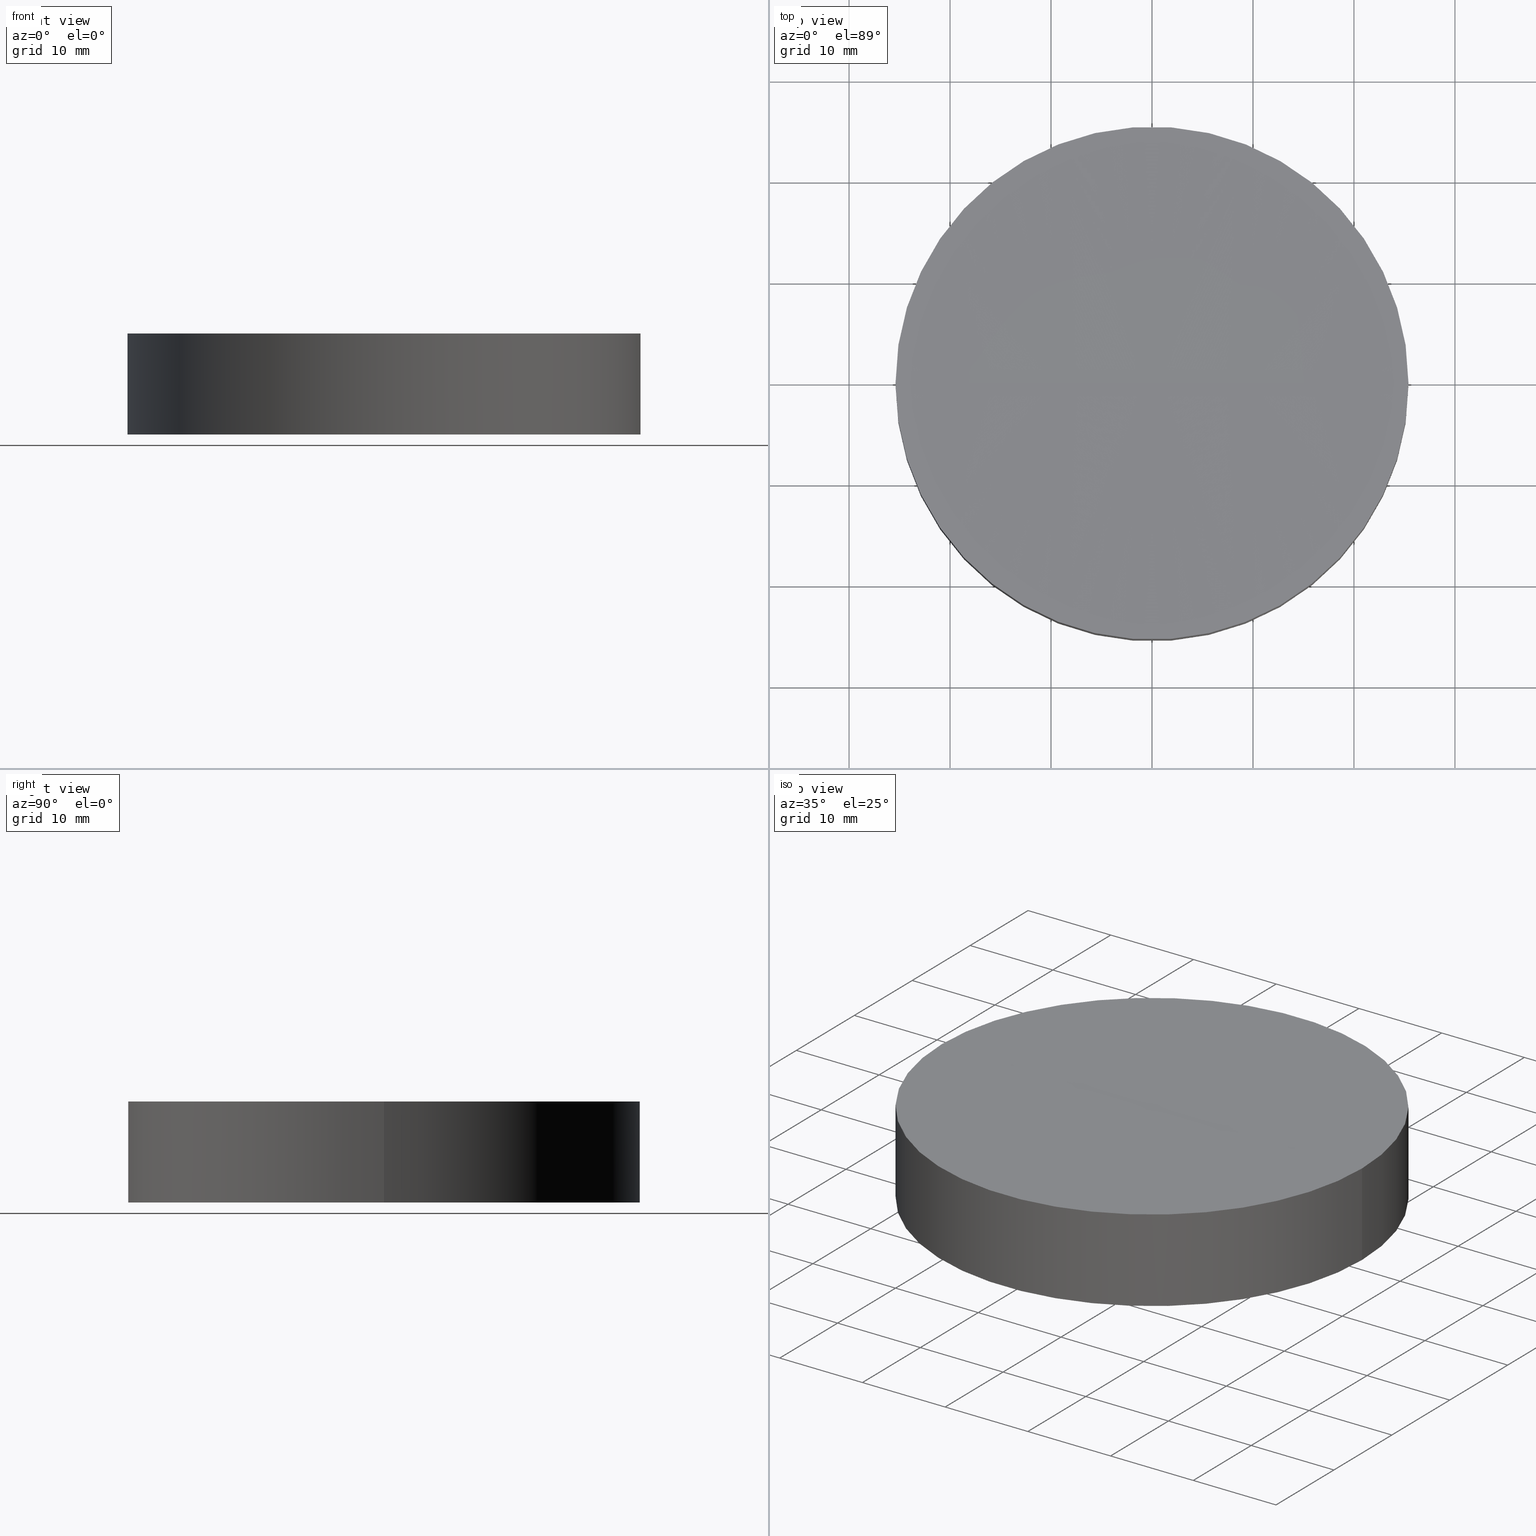
[diagram: canonical four-view strip — front | top / right | iso, engineering-drawing reading convention]
A machine part, canonical four-view strip (front | top / right | iso — engineering-drawing reading convention). The complete STEP part file that produces these views, byte-faithful:
ISO-10303-21;
HEADER;
FILE_DESCRIPTION (( 'STEP AP203' ),
    '1' );
FILE_NAME ('010-1522E_UVFS_PCV_window.STEP',
    '2021-02-25T13:34:09',
    ( '' ),
    ( '' ),
    'SwSTEP 2.0',
    'SolidWorks 2019',
    '' );
FILE_SCHEMA (( 'CONFIG_CONTROL_DESIGN' ));
ENDSEC;

DATA;
#1 = DIRECTION ( 'NONE',  ( 1.000000000000000000, 0.000000000000000000, -0.000000000000000000 ) ) ;
#2 = DIRECTION ( 'NONE',  ( 0.000000000000000000, 0.000000000000000000, 1.000000000000000000 ) ) ;
#3 = APPLICATION_CONTEXT ( 'configuration controlled 3d designs of mechanical parts and assemblies' ) ;
#4 = AXIS2_PLACEMENT_3D ( 'NONE', #186, #65, #1 ) ;
#5 = SPHERICAL_SURFACE ( 'NONE', #22, 2999.999999999999545 ) ;
#6 = CC_DESIGN_PERSON_AND_ORGANIZATION_ASSIGNMENT ( #28, #71, ( #35 ) ) ;
#7 = FACE_OUTER_BOUND ( 'NONE', #29, .T. ) ;
#8 = APPROVAL_STATUS ( 'not_yet_approved' ) ;
#9 = CIRCLE ( 'NONE', #151, 2999.999999999999091 ) ;
#10 = LOCAL_TIME ( 15, 34, 9.000000000000000000, #57 ) ;
#11 = APPROVAL_ROLE ( '' ) ;
#12 = EDGE_CURVE ( 'NONE', #43, #110, #101, .T. ) ;
#13 = PERSON_AND_ORGANIZATION ( #49, #148 ) ;
#14 = LOCAL_TIME ( 15, 34, 9.000000000000000000, #39 ) ;
#15 = ORIENTED_EDGE ( 'NONE', *, *, #83, .T. ) ;
#16 = CARTESIAN_POINT ( 'NONE',  ( -25.39999999999999858, 0.000000000000000000, 0.000000000000000000 ) ) ;
#17 = AXIS2_PLACEMENT_3D ( 'NONE', #167, #113, #31 ) ;
#18 = CARTESIAN_POINT ( 'NONE',  ( -25.39999999995439239, 0.000000000000000000, 9.999999999999786837 ) ) ;
#19 = DIRECTION ( 'NONE',  ( 0.000000000000000000, 1.000000000000000000, -0.000000000000000000 ) ) ;
#20 = DIRECTION ( 'NONE',  ( -1.000000000000000000, 0.000000000000000000, 0.000000000000000000 ) ) ;
#21 = PERSON_AND_ORGANIZATION ( #49, #148 ) ;
#22 = AXIS2_PLACEMENT_3D ( 'NONE', #157, #171, #112 ) ;
#23 =( NAMED_UNIT ( * ) SI_UNIT ( $, .STERADIAN. ) SOLID_ANGLE_UNIT ( ) );
#24 = CARTESIAN_POINT ( 'NONE',  ( 0.000000000000000000, 0.000000000000000000, 0.000000000000000000 ) ) ;
#25 = APPROVAL_ROLE ( '' ) ;
#26 = DIRECTION ( 'NONE',  ( 1.000000000000000000, 0.000000000000000000, 0.000000000000000000 ) ) ;
#27 = APPROVAL_DATE_TIME ( #44, #200 ) ;
#28 = PERSON_AND_ORGANIZATION ( #49, #148 ) ;
#29 = EDGE_LOOP ( 'NONE', ( #179, #61, #58 ) ) ;
#30 = ORIENTED_EDGE ( 'NONE', *, *, #83, .F. ) ;
#31 = DIRECTION ( 'NONE',  ( -1.000000000000000000, 0.000000000000000000, 0.000000000000000000 ) ) ;
#32 = CARTESIAN_POINT ( 'NONE',  ( 0.000000000000000000, 0.000000000000000000, 0.000000000000000000 ) ) ;
#33 = LINE ( 'NONE', #191, #163 ) ;
#34 = FACE_OUTER_BOUND ( 'NONE', #184, .T. ) ;
#35 = PRODUCT_DEFINITION_FORMATION_WITH_SPECIFIED_SOURCE ( 'ANY', '', #137, .NOT_KNOWN. ) ;
#36 =( NAMED_UNIT ( * ) PLANE_ANGLE_UNIT ( ) SI_UNIT ( $, .RADIAN. ) );
#37 = DESIGN_CONTEXT ( 'detailed design', #121, 'design' ) ;
#38 = VECTOR ( 'NONE', #81, 1000.000000000000000 ) ;
#39 = COORDINATED_UNIVERSAL_TIME_OFFSET ( 2, 0, .AHEAD. ) ;
#40 = PERSON_AND_ORGANIZATION_ROLE ( 'design_supplier' ) ;
#41 = CLOSED_SHELL ( 'NONE', ( #174, #170, #166, #153, #123 ) ) ;
#42 = APPROVAL_STATUS ( 'not_yet_approved' ) ;
#43 = VERTEX_POINT ( 'NONE', #89 ) ;
#44 = DATE_AND_TIME ( #126, #142 ) ;
#45 = ORIENTED_EDGE ( 'NONE', *, *, #144, .T. ) ;
#46 = ADVANCED_BREP_SHAPE_REPRESENTATION ( '010-1522E_UVFS_PCV_window', ( #188, #103 ), #160 ) ;
#47 = DIRECTION ( 'NONE',  ( 1.000000000000000000, 0.000000000000000000, 0.000000000000000000 ) ) ;
#48 = DIRECTION ( 'NONE',  ( 0.000000000000000000, 0.000000000000000000, 1.000000000000000000 ) ) ;
#49 = PERSON ( 'UNSPECIFIED', 'UNSPECIFIED', 'UNSPECIFIED', ('UNSPECIFIED'), ('UNSPECIFIED'), ('UNSPECIFIED') ) ;
#50 = AXIS2_PLACEMENT_3D ( 'NONE', #32, #155, #145 ) ;
#51 = DIRECTION ( 'NONE',  ( 0.000000000000000000, -1.000000000000000000, -0.000000000000000000 ) ) ;
#52 = CARTESIAN_POINT ( 'NONE',  ( 0.000000000000000000, 0.000000000000000000, 0.000000000000000000 ) ) ;
#53 = CC_DESIGN_PERSON_AND_ORGANIZATION_ASSIGNMENT ( #54, #116, ( #137 ) ) ;
#54 = PERSON_AND_ORGANIZATION ( #49, #148 ) ;
#55 = PRODUCT_RELATED_PRODUCT_CATEGORY ( 'detail', '', ( #137 ) ) ;
#56 = PERSON_AND_ORGANIZATION_ROLE ( 'creator' ) ;
#57 = COORDINATED_UNIVERSAL_TIME_OFFSET ( 2, 0, .AHEAD. ) ;
#58 = ORIENTED_EDGE ( 'NONE', *, *, #140, .T. ) ;
#59 = COORDINATED_UNIVERSAL_TIME_OFFSET ( 2, 0, .AHEAD. ) ;
#60 = PRODUCT_DEFINITION_SHAPE ( 'NONE', 'NONE',  #92 ) ;
#61 = ORIENTED_EDGE ( 'NONE', *, *, #12, .F. ) ;
#62 = CC_DESIGN_APPROVAL ( #131, ( #35 ) ) ;
#63 = CARTESIAN_POINT ( 'NONE',  ( 3.712308238590367182E-13, 0.000000000000000000, 3009.892471406266850 ) ) ;
#64 = CYLINDRICAL_SURFACE ( 'NONE', #66, 25.39999999999999858 ) ;
#65 = DIRECTION ( 'NONE',  ( 0.000000000000000000, 0.000000000000000000, 1.000000000000000000 ) ) ;
#66 = AXIS2_PLACEMENT_3D ( 'NONE', #159, #190, #20 ) ;
#67 = DIRECTION ( 'NONE',  ( 1.000000000000000000, 0.000000000000000000, 0.000000000000000000 ) ) ;
#68 = FACE_OUTER_BOUND ( 'NONE', #74, .T. ) ;
#69 = CC_DESIGN_PERSON_AND_ORGANIZATION_ASSIGNMENT ( #180, #107, ( #79 ) ) ;
#70 = APPROVAL_PERSON_ORGANIZATION ( #177, #131, #25 ) ;
#71 = PERSON_AND_ORGANIZATION_ROLE ( 'creator' ) ;
#72 = DATE_AND_TIME ( #161, #119 ) ;
#73 = DATE_AND_TIME ( #109, #14 ) ;
#74 = EDGE_LOOP ( 'NONE', ( #183, #45, #196 ) ) ;
#75 = EDGE_CURVE ( 'NONE', #110, #43, #85, .T. ) ;
#76 = APPROVAL_PERSON_ORGANIZATION ( #21, #91, #11 ) ;
#77 = VERTEX_POINT ( 'NONE', #156 ) ;
#78 = CYLINDRICAL_SURFACE ( 'NONE', #17, 25.39999999999999858 ) ;
#79 = SECURITY_CLASSIFICATION ( '', '', #104 ) ;
#80 = LINE ( 'NONE', #100, #38 ) ;
#81 = DIRECTION ( 'NONE',  ( -0.000000000000000000, -0.000000000000000000, -1.000000000000000000 ) ) ;
#82 = CARTESIAN_POINT ( 'NONE',  ( 5.549278437311396424E-13, 0.000000000000000000, 9.892471406267144829 ) ) ;
#83 = EDGE_CURVE ( 'NONE', #43, #77, #80, .T. ) ;
#84 = UNCERTAINTY_MEASURE_WITH_UNIT (LENGTH_MEASURE( 1.000000000000000082E-05 ), #130, 'distance_accuracy_value', 'NONE');
#85 = CIRCLE ( 'NONE', #108, 25.39999999995476543 ) ;
#86 = DIRECTION ( 'NONE',  ( 0.000000000000000000, 0.000000000000000000, 1.000000000000000000 ) ) ;
#87 = PERSON_AND_ORGANIZATION ( #49, #148 ) ;
#88 = APPROVAL_PERSON_ORGANIZATION ( #90, #200, #195 ) ;
#89 = CARTESIAN_POINT ( 'NONE',  ( 25.39999999995513491, 3.110602869831530446E-15, 9.999999999999786837 ) ) ;
#90 = PERSON_AND_ORGANIZATION ( #49, #148 ) ;
#91 = APPROVAL ( #8, 'UNSPECIFIED' ) ;
#92 = PRODUCT_DEFINITION ( 'UNKNOWN', '', #35, #37 ) ;
#93 = ORIENTED_EDGE ( 'NONE', *, *, #75, .T. ) ;
#94 = AXIS2_PLACEMENT_3D ( 'NONE', #52, #2, #67 ) ;
#95 = CARTESIAN_POINT ( 'NONE',  ( 3.712308238590367182E-13, 0.000000000000000000, 3009.892471406266850 ) ) ;
#96 = DIRECTION ( 'NONE',  ( -0.000000000000000000, -0.000000000000000000, -1.000000000000000000 ) ) ;
#97 = DIRECTION ( 'NONE',  ( -0.000000000000000000, -0.000000000000000000, -1.000000000000000000 ) ) ;
#98 = CC_DESIGN_PERSON_AND_ORGANIZATION_ASSIGNMENT ( #13, #56, ( #92 ) ) ;
#99 = FACE_OUTER_BOUND ( 'NONE', #136, .T. ) ;
#100 = CARTESIAN_POINT ( 'NONE',  ( 25.39999999999999858, 3.110602869834276865E-15, 10.00000000000000000 ) ) ;
#101 = CIRCLE ( 'NONE', #168, 25.39999999995476543 ) ;
#102 = MECHANICAL_CONTEXT ( 'NONE', #3, 'mechanical' ) ;
#103 = AXIS2_PLACEMENT_3D ( 'NONE', #24, #86, #118 ) ;
#104 = SECURITY_CLASSIFICATION_LEVEL ( 'unclassified' ) ;
#105 = CC_DESIGN_PERSON_AND_ORGANIZATION_ASSIGNMENT ( #87, #40, ( #35 ) ) ;
#106 = CARTESIAN_POINT ( 'NONE',  ( 3.712308238590367182E-13, 0.000000000000000000, 9.999999999999786837 ) ) ;
#107 = PERSON_AND_ORGANIZATION_ROLE ( 'classification_officer' ) ;
#108 = AXIS2_PLACEMENT_3D ( 'NONE', #143, #97, #169 ) ;
#109 = CALENDAR_DATE ( 2021, 25, 2 ) ;
#110 = VERTEX_POINT ( 'NONE', #18 ) ;
#111 = ORIENTED_EDGE ( 'NONE', *, *, #115, .F. ) ;
#112 = DIRECTION ( 'NONE',  ( 1.000000000000000000, 0.000000000000000000, 0.000000000000000000 ) ) ;
#113 = DIRECTION ( 'NONE',  ( -0.000000000000000000, -0.000000000000000000, -1.000000000000000000 ) ) ;
#114 = DIRECTION ( 'NONE',  ( 1.000000000000000000, 1.224646799147353207E-16, 0.000000000000000000 ) ) ;
#115 = EDGE_CURVE ( 'NONE', #110, #198, #33, .T. ) ;
#116 = PERSON_AND_ORGANIZATION_ROLE ( 'design_owner' ) ;
#117 = CIRCLE ( 'NONE', #138, 2999.999999999999545 ) ;
#118 = DIRECTION ( 'NONE',  ( 1.000000000000000000, 0.000000000000000000, 0.000000000000000000 ) ) ;
#119 = LOCAL_TIME ( 15, 34, 9.000000000000000000, #134 ) ;
#120 = APPLICATION_PROTOCOL_DEFINITION ( 'international standard', 'config_control_design', 1994, #3 ) ;
#121 = APPLICATION_CONTEXT ( 'configuration controlled 3d designs of mechanical parts and assemblies' ) ;
#122 = DATE_AND_TIME ( #124, #10 ) ;
#123 = ADVANCED_FACE ( 'NONE', ( #7 ), #5, .F. ) ;
#124 = CALENDAR_DATE ( 2021, 25, 2 ) ;
#125 = ORIENTED_EDGE ( 'NONE', *, *, #181, .T. ) ;
#126 = CALENDAR_DATE ( 2021, 25, 2 ) ;
#127 = CC_DESIGN_DATE_AND_TIME_ASSIGNMENT ( #164, #150, ( #79 ) ) ;
#128 = CC_DESIGN_APPROVAL ( #91, ( #92 ) ) ;
#129 = PLANE ( 'NONE',  #4 ) ;
#130 =( LENGTH_UNIT ( ) NAMED_UNIT ( * ) SI_UNIT ( .MILLI., .METRE. ) );
#131 = APPROVAL ( #42, 'UNSPECIFIED' ) ;
#132 = CC_DESIGN_SECURITY_CLASSIFICATION ( #79, ( #35 ) ) ;
#133 = COORDINATED_UNIVERSAL_TIME_OFFSET ( 2, 0, .AHEAD. ) ;
#134 = COORDINATED_UNIVERSAL_TIME_OFFSET ( 2, 0, .AHEAD. ) ;
#135 = APPROVAL_STATUS ( 'not_yet_approved' ) ;
#136 = EDGE_LOOP ( 'NONE', ( #141, #199 ) ) ;
#137 = PRODUCT ( '010-1522E_UVFS_PCV_window', '010-1522E_UVFS_PCV_window', '', ( #102 ) ) ;
#138 = AXIS2_PLACEMENT_3D ( 'NONE', #63, #187, #114 ) ;
#139 = SHAPE_DEFINITION_REPRESENTATION ( #60, #46 ) ;
#140 = EDGE_CURVE ( 'NONE', #43, #182, #9, .T. ) ;
#141 = ORIENTED_EDGE ( 'NONE', *, *, #181, .F. ) ;
#142 = LOCAL_TIME ( 15, 34, 9.000000000000000000, #59 ) ;
#143 = CARTESIAN_POINT ( 'NONE',  ( 3.712308238590367182E-13, 0.000000000000000000, 9.999999999999786837 ) ) ;
#144 = EDGE_CURVE ( 'NONE', #110, #182, #117, .T. ) ;
#145 = DIRECTION ( 'NONE',  ( 1.000000000000000000, 0.000000000000000000, 0.000000000000000000 ) ) ;
#146 = SPHERICAL_SURFACE ( 'NONE', #189, 2999.999999999999545 ) ;
#147 = EDGE_CURVE ( 'NONE', #77, #198, #176, .T. ) ;
#148 = ORGANIZATION ( 'UNSPECIFIED', 'UNSPECIFIED', '' ) ;
#149 = DATE_TIME_ROLE ( 'creation_date' ) ;
#150 = DATE_TIME_ROLE ( 'classification_date' ) ;
#151 = AXIS2_PLACEMENT_3D ( 'NONE', #95, #19, #48 ) ;
#152 = ORIENTED_EDGE ( 'NONE', *, *, #147, .T. ) ;
#153 = ADVANCED_FACE ( 'NONE', ( #99 ), #129, .F. ) ;
#154 = ORIENTED_EDGE ( 'NONE', *, *, #12, .T. ) ;
#155 = DIRECTION ( 'NONE',  ( 0.000000000000000000, 0.000000000000000000, 1.000000000000000000 ) ) ;
#156 = CARTESIAN_POINT ( 'NONE',  ( 25.39999999999999858, 3.110602869834276865E-15, 0.000000000000000000 ) ) ;
#157 = CARTESIAN_POINT ( 'NONE',  ( 3.712308238590367182E-13, 0.000000000000000000, 3009.892471406266850 ) ) ;
#158 = FACE_OUTER_BOUND ( 'NONE', #165, .T. ) ;
#159 = CARTESIAN_POINT ( 'NONE',  ( 0.000000000000000000, 0.000000000000000000, 10.00000000000000000 ) ) ;
#160 =( GEOMETRIC_REPRESENTATION_CONTEXT ( 3 ) GLOBAL_UNCERTAINTY_ASSIGNED_CONTEXT ( ( #84 ) ) GLOBAL_UNIT_ASSIGNED_CONTEXT ( ( #130, #36, #23 ) ) REPRESENTATION_CONTEXT ( 'NONE', 'WORKASPACE' ) );
#161 = CALENDAR_DATE ( 2021, 25, 2 ) ;
#162 = DIRECTION ( 'NONE',  ( -0.000000000000000000, -0.000000000000000000, -1.000000000000000000 ) ) ;
#163 = VECTOR ( 'NONE', #96, 1000.000000000000000 ) ;
#164 = DATE_AND_TIME ( #193, #173 ) ;
#165 = EDGE_LOOP ( 'NONE', ( #30, #154, #197, #125 ) ) ;
#166 = ADVANCED_FACE ( 'NONE', ( #158 ), #78, .T. ) ;
#167 = CARTESIAN_POINT ( 'NONE',  ( 0.000000000000000000, 0.000000000000000000, 10.00000000000000000 ) ) ;
#168 = AXIS2_PLACEMENT_3D ( 'NONE', #106, #162, #26 ) ;
#169 = DIRECTION ( 'NONE',  ( 1.000000000000000000, 0.000000000000000000, 0.000000000000000000 ) ) ;
#170 = ADVANCED_FACE ( 'NONE', ( #34 ), #64, .T. ) ;
#171 = DIRECTION ( 'NONE',  ( 0.000000000000000000, -1.000000000000000000, -0.000000000000000000 ) ) ;
#172 = APPLICATION_PROTOCOL_DEFINITION ( 'international standard', 'config_control_design', 1994, #121 ) ;
#173 = LOCAL_TIME ( 15, 34, 9.000000000000000000, #133 ) ;
#174 = ADVANCED_FACE ( 'NONE', ( #68 ), #146, .F. ) ;
#175 = CC_DESIGN_DATE_AND_TIME_ASSIGNMENT ( #122, #149, ( #92 ) ) ;
#176 = CIRCLE ( 'NONE', #94, 25.39999999999999858 ) ;
#177 = PERSON_AND_ORGANIZATION ( #49, #148 ) ;
#178 = APPROVAL_DATE_TIME ( #73, #131 ) ;
#179 = ORIENTED_EDGE ( 'NONE', *, *, #144, .F. ) ;
#180 = PERSON_AND_ORGANIZATION ( #49, #148 ) ;
#181 = EDGE_CURVE ( 'NONE', #198, #77, #192, .T. ) ;
#182 = VERTEX_POINT ( 'NONE', #82 ) ;
#183 = ORIENTED_EDGE ( 'NONE', *, *, #75, .F. ) ;
#184 = EDGE_LOOP ( 'NONE', ( #93, #15, #152, #111 ) ) ;
#185 = CARTESIAN_POINT ( 'NONE',  ( 3.712308238590367182E-13, 0.000000000000000000, 3009.892471406266850 ) ) ;
#186 = CARTESIAN_POINT ( 'NONE',  ( 0.000000000000000000, 0.000000000000000000, 0.000000000000000000 ) ) ;
#187 = DIRECTION ( 'NONE',  ( 1.224646799147353207E-16, -1.000000000000000000, 0.000000000000000000 ) ) ;
#188 = MANIFOLD_SOLID_BREP ( 'Cut-Revolve1', #41 ) ;
#189 = AXIS2_PLACEMENT_3D ( 'NONE', #185, #51, #47 ) ;
#190 = DIRECTION ( 'NONE',  ( -0.000000000000000000, -0.000000000000000000, -1.000000000000000000 ) ) ;
#191 = CARTESIAN_POINT ( 'NONE',  ( -25.39999999999999858, 0.000000000000000000, 10.00000000000000000 ) ) ;
#192 = CIRCLE ( 'NONE', #50, 25.39999999999999858 ) ;
#193 = CALENDAR_DATE ( 2021, 25, 2 ) ;
#194 = APPROVAL_DATE_TIME ( #72, #91 ) ;
#195 = APPROVAL_ROLE ( '' ) ;
#196 = ORIENTED_EDGE ( 'NONE', *, *, #140, .F. ) ;
#197 = ORIENTED_EDGE ( 'NONE', *, *, #115, .T. ) ;
#198 = VERTEX_POINT ( 'NONE', #16 ) ;
#199 = ORIENTED_EDGE ( 'NONE', *, *, #147, .F. ) ;
#200 = APPROVAL ( #135, 'UNSPECIFIED' ) ;
#201 = CC_DESIGN_APPROVAL ( #200, ( #79 ) ) ;
ENDSEC;
END-ISO-10303-21;
